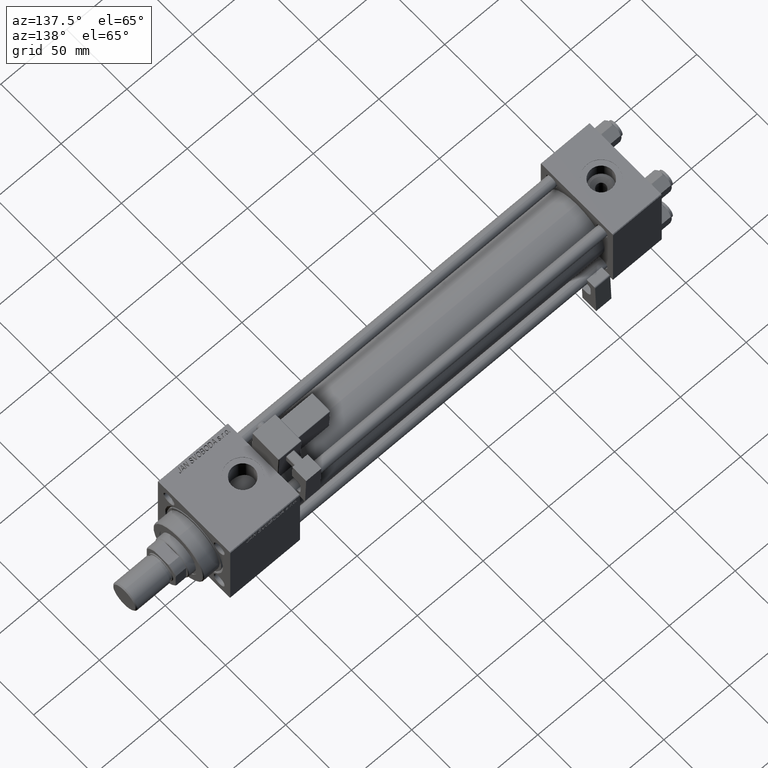
[diagram: clean part render]
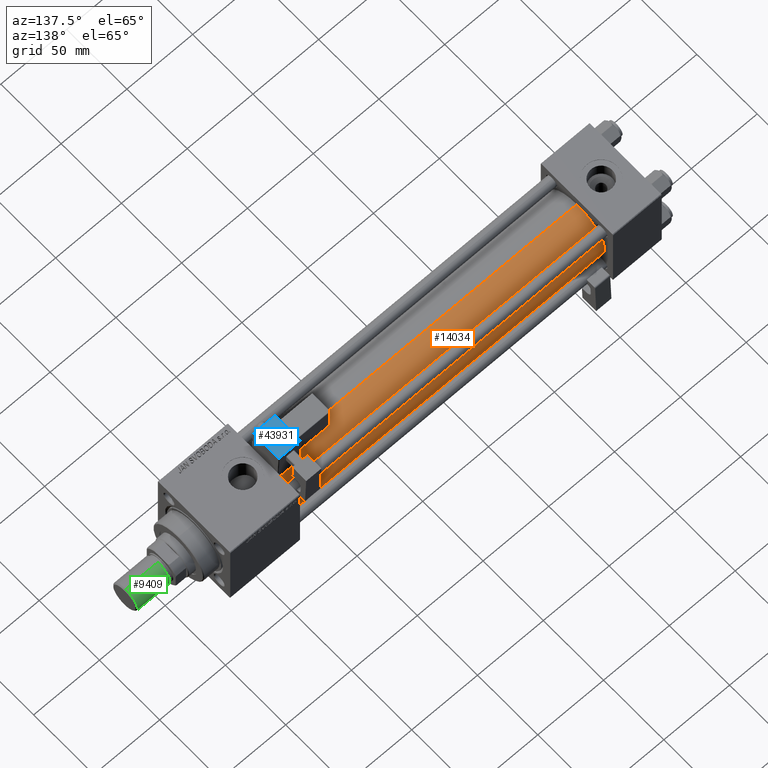
[diagram: same view with three faces highlighted in distinct colors, each labeled with its STEP entity id]
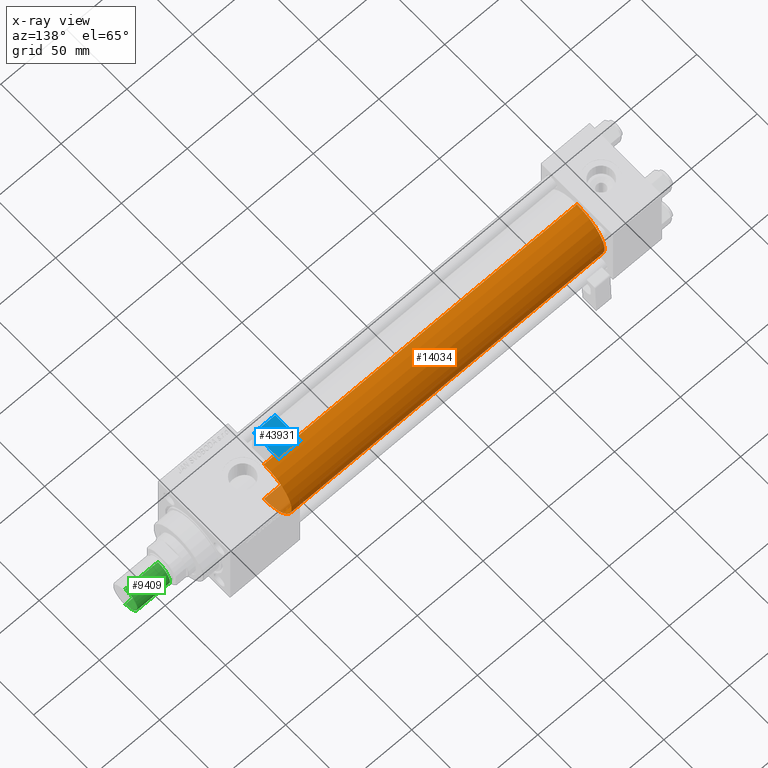
[diagram: x-ray of the same camera — body ghosted, the three highlighted faces saturated]
A machine part, auxiliary view with three faces highlighted in distinct colors.
The next image is the same camera in x-ray (body ghosted, the three faces saturated) — at least one of them is partly hidden behind the body in this view.
Their STEP definitions:

[orange] entity #14034 — the highlighted cylindrical surface (partial cylindrical patch) has radius 23 mm, axis along (-1, -0, -0).
#1078 = AXIS2_PLACEMENT_3D ( 'NONE', #30107, #38689, #30648 ) ;
#3089 = ORIENTED_EDGE ( 'NONE', *, *, #49831, .F. ) ;
#5354 = FACE_OUTER_BOUND ( 'NONE', #6206, .T. ) ;
#5767 = CIRCLE ( 'NONE', #15514, 23.00000000000000000 ) ;
#5958 = AXIS2_PLACEMENT_3D ( 'NONE', #33011, #11330, #23560 ) ;
#6127 = VECTOR ( 'NONE', #27192, 1000.000000000000000 ) ;
#6206 = EDGE_LOOP ( 'NONE', ( #35298, #8147, #42216, #3089 ) ) ;
#8147 = ORIENTED_EDGE ( 'NONE', *, *, #27234, .T. ) ;
#9527 = CYLINDRICAL_SURFACE ( 'NONE', #1078, 23.00000000000000000 ) ;
#10807 = CARTESIAN_POINT ( 'NONE',  ( 274.9999999999999432, 2.146024240737016609E-16, -23.00000000000000000 ) ) ;
#11330 = DIRECTION ( 'NONE',  ( 1.000000000000000000, 0.000000000000000000, 0.000000000000000000 ) ) ;
#14034 = ADVANCED_FACE ( 'NONE', ( #5354 ), #9527, .T. ) ;
#14163 = CARTESIAN_POINT ( 'NONE',  ( 37.00000000000000711, -2.602085213965210642E-15, 0.000000000000000000 ) ) ;
#14936 = LINE ( 'NONE', #18829, #6127 ) ;
#15514 = AXIS2_PLACEMENT_3D ( 'NONE', #14163, #47762, #39161 ) ;
#18829 = CARTESIAN_POINT ( 'NONE',  ( 274.9999999999999432, -2.602085213965210642E-15, 23.00000000000000000 ) ) ;
#20119 = VECTOR ( 'NONE', #23056, 1000.000000000000000 ) ;
#20188 = CARTESIAN_POINT ( 'NONE',  ( 274.9999999999999432, 2.146024240737016609E-16, -23.00000000000000000 ) ) ;
#21252 = EDGE_CURVE ( 'NONE', #26493, #37036, #5767, .T. ) ;
#21611 = VERTEX_POINT ( 'NONE', #20188 ) ;
#23056 = DIRECTION ( 'NONE',  ( -1.000000000000000000, -0.000000000000000000, -0.000000000000000000 ) ) ;
#23560 = DIRECTION ( 'NONE',  ( 0.000000000000000000, 0.000000000000000000, -1.000000000000000000 ) ) ;
#25839 = VERTEX_POINT ( 'NONE', #45006 ) ;
#26092 = EDGE_CURVE ( 'NONE', #21611, #25839, #29804, .T. ) ;
#26493 = VERTEX_POINT ( 'NONE', #31792 ) ;
#27192 = DIRECTION ( 'NONE',  ( -1.000000000000000000, -0.000000000000000000, -0.000000000000000000 ) ) ;
#27234 = EDGE_CURVE ( 'NONE', #21611, #26493, #52480, .T. ) ;
#29804 = CIRCLE ( 'NONE', #5958, 23.00000000000000000 ) ;
#30107 = CARTESIAN_POINT ( 'NONE',  ( 274.9999999999999432, -2.602085213965210642E-15, 0.000000000000000000 ) ) ;
#30648 = DIRECTION ( 'NONE',  ( 0.000000000000000000, 0.000000000000000000, 1.000000000000000000 ) ) ;
#31792 = CARTESIAN_POINT ( 'NONE',  ( 37.00000000000000711, 2.146024240737016609E-16, -23.00000000000000000 ) ) ;
#33011 = CARTESIAN_POINT ( 'NONE',  ( 274.9999999999999432, -2.602085213965210642E-15, 0.000000000000000000 ) ) ;
#35298 = ORIENTED_EDGE ( 'NONE', *, *, #26092, .F. ) ;
#37036 = VERTEX_POINT ( 'NONE', #46863 ) ;
#38689 = DIRECTION ( 'NONE',  ( -1.000000000000000000, -0.000000000000000000, -0.000000000000000000 ) ) ;
#39161 = DIRECTION ( 'NONE',  ( 0.000000000000000000, 0.000000000000000000, 1.000000000000000000 ) ) ;
#42216 = ORIENTED_EDGE ( 'NONE', *, *, #21252, .T. ) ;
#45006 = CARTESIAN_POINT ( 'NONE',  ( 274.9999999999999432, -2.602085213965210642E-15, 23.00000000000000000 ) ) ;
#46863 = CARTESIAN_POINT ( 'NONE',  ( 37.00000000000000711, -2.602085213965210642E-15, 23.00000000000000000 ) ) ;
#47762 = DIRECTION ( 'NONE',  ( 1.000000000000000000, -0.000000000000000000, 0.000000000000000000 ) ) ;
#49831 = EDGE_CURVE ( 'NONE', #25839, #37036, #14936, .T. ) ;
#52480 = LINE ( 'NONE', #10807, #20119 ) ;

[blue] entity #43931 — the highlighted planar face has unit normal (0, -0.0353, -0.9994).
#531 = ORIENTED_EDGE ( 'NONE', *, *, #44235, .T. ) ;
#627 = DIRECTION ( 'NONE',  ( 1.000000000000000000, -0.000000000000000000, 0.000000000000000000 ) ) ;
#5613 = CARTESIAN_POINT ( 'NONE',  ( 8.250000000000003553, -35.75000000000000000, -1.000000000000000222 ) ) ;
#6712 = PLANE ( 'NONE',  #14800 ) ;
#6760 = VERTEX_POINT ( 'NONE', #46752 ) ;
#6865 = CARTESIAN_POINT ( 'NONE',  ( 8.750000000000003553, -35.25000000000000000, -1.000000000000000222 ) ) ;
#8316 = CARTESIAN_POINT ( 'NONE',  ( 8.250000000000003553, -14.24999999999999822, -1.000000000000000222 ) ) ;
#8435 = LINE ( 'NONE', #29827, #22938 ) ;
#11018 = LINE ( 'NONE', #6865, #19759 ) ;
#11566 = CARTESIAN_POINT ( 'NONE',  ( -8.250000000000003553, -14.24999999999999822, -1.000000000000000222 ) ) ;
#12798 = LINE ( 'NONE', #25865, #52034 ) ;
#14579 = VERTEX_POINT ( 'NONE', #8316 ) ;
#14771 = FACE_OUTER_BOUND ( 'NONE', #34715, .T. ) ;
#14800 = AXIS2_PLACEMENT_3D ( 'NONE', #23674, #31742, #43942 ) ;
#15866 = EDGE_CURVE ( 'NONE', #21946, #6760, #11018, .T. ) ;
#16222 = ORIENTED_EDGE ( 'NONE', *, *, #51828, .T. ) ;
#18388 = DIRECTION ( 'NONE',  ( -0.000000000000000000, -1.000000000000000000, -0.000000000000000000 ) ) ;
#19759 = VECTOR ( 'NONE', #40747, 1000.000000000000000 ) ;
#21946 = VERTEX_POINT ( 'NONE', #41219 ) ;
#22938 = VECTOR ( 'NONE', #627, 1000.000000000000000 ) ;
#23674 = CARTESIAN_POINT ( 'NONE',  ( 8.750000000000003553, -35.75000000000000000, -1.000000000000000222 ) ) ;
#25865 = CARTESIAN_POINT ( 'NONE',  ( -8.250000000000003553, -35.75000000000000000, -1.000000000000000222 ) ) ;
#26844 = EDGE_CURVE ( 'NONE', #14579, #21946, #43664, .T. ) ;
#27995 = ORIENTED_EDGE ( 'NONE', *, *, #26844, .T. ) ;
#29827 = CARTESIAN_POINT ( 'NONE',  ( 8.750000000000003553, -14.24999999999999822, -1.000000000000000222 ) ) ;
#29847 = VECTOR ( 'NONE', #18388, 1000.000000000000000 ) ;
#30869 = DIRECTION ( 'NONE',  ( -0.000000000000000000, 1.000000000000000000, 0.000000000000000000 ) ) ;
#31742 = DIRECTION ( 'NONE',  ( 0.000000000000000000, 0.000000000000000000, 1.000000000000000000 ) ) ;
#34715 = EDGE_LOOP ( 'NONE', ( #16222, #27995, #52630, #531 ) ) ;
#40747 = DIRECTION ( 'NONE',  ( -1.000000000000000000, -0.000000000000000000, 0.000000000000000000 ) ) ;
#41219 = CARTESIAN_POINT ( 'NONE',  ( 8.250000000000003553, -35.25000000000000000, -1.000000000000000222 ) ) ;
#43664 = LINE ( 'NONE', #5613, #29847 ) ;
#43931 = ADVANCED_FACE ( 'NONE', ( #14771 ), #6712, .F. ) ;
#43942 = DIRECTION ( 'NONE',  ( 1.000000000000000000, 0.000000000000000000, -0.000000000000000000 ) ) ;
#44235 = EDGE_CURVE ( 'NONE', #6760, #47228, #12798, .T. ) ;
#46752 = CARTESIAN_POINT ( 'NONE',  ( -8.250000000000003553, -35.25000000000000000, -1.000000000000000222 ) ) ;
#47228 = VERTEX_POINT ( 'NONE', #11566 ) ;
#51828 = EDGE_CURVE ( 'NONE', #47228, #14579, #8435, .T. ) ;
#52034 = VECTOR ( 'NONE', #30869, 1000.000000000000000 ) ;
#52630 = ORIENTED_EDGE ( 'NONE', *, *, #15866, .T. ) ;

[green] entity #9409 — the highlighted cylindrical surface (edge-blend (fillet) strip) has radius 10 mm, axis along (1, -0, -0).
#1399 = CIRCLE ( 'NONE', #4965, 10.00000000000000000 ) ;
#2671 = DIRECTION ( 'NONE',  ( 0.000000000000000000, 0.000000000000000000, 1.000000000000000000 ) ) ;
#4302 = CARTESIAN_POINT ( 'NONE',  ( -10.00000000000000000, 0.000000000000000000, 25.50000000000000000 ) ) ;
#4355 = LINE ( 'NONE', #16845, #13922 ) ;
#4965 = AXIS2_PLACEMENT_3D ( 'NONE', #17323, #22075, #26516 ) ;
#9409 = ADVANCED_FACE ( 'NONE', ( #10430 ), #32389, .T. ) ;
#10080 = AXIS2_PLACEMENT_3D ( 'NONE', #40718, #2671, #36563 ) ;
#10430 = FACE_OUTER_BOUND ( 'NONE', #11891, .T. ) ;
#10458 = VERTEX_POINT ( 'NONE', #40978 ) ;
#11891 = EDGE_LOOP ( 'NONE', ( #43907, #38201, #14874, #51070 ) ) ;
#13922 = VECTOR ( 'NONE', #33810, 1000.000000000000000 ) ;
#14874 = ORIENTED_EDGE ( 'NONE', *, *, #25739, .T. ) ;
#15590 = CARTESIAN_POINT ( 'NONE',  ( 10.00000000000000000, 1.224646799147353256E-15, 25.50000000000000000 ) ) ;
#16845 = CARTESIAN_POINT ( 'NONE',  ( -10.00000000000000000, 0.000000000000000000, 25.50000000000000000 ) ) ;
#17323 = CARTESIAN_POINT ( 'NONE',  ( 0.000000000000000000, 0.000000000000000000, 0.8000000000000055955 ) ) ;
#18225 = EDGE_CURVE ( 'NONE', #10458, #25570, #50863, .T. ) ;
#19434 = CARTESIAN_POINT ( 'NONE',  ( 10.00000000000000000, 1.224646799147353256E-15, 0.8000000000000055955 ) ) ;
#22075 = DIRECTION ( 'NONE',  ( -0.000000000000000000, -0.000000000000000000, 1.000000000000000000 ) ) ;
#25570 = VERTEX_POINT ( 'NONE', #4302 ) ;
#25739 = EDGE_CURVE ( 'NONE', #53120, #47996, #1399, .T. ) ;
#26516 = DIRECTION ( 'NONE',  ( 1.000000000000000000, 0.000000000000000000, 0.000000000000000000 ) ) ;
#28660 = LINE ( 'NONE', #15590, #34084 ) ;
#32112 = CARTESIAN_POINT ( 'NONE',  ( 0.000000000000000000, 0.000000000000000000, 25.50000000000000000 ) ) ;
#32389 = CYLINDRICAL_SURFACE ( 'NONE', #48930, 10.00000000000000000 ) ;
#32563 = DIRECTION ( 'NONE',  ( -0.000000000000000000, -0.000000000000000000, -1.000000000000000000 ) ) ;
#33810 = DIRECTION ( 'NONE',  ( -0.000000000000000000, -0.000000000000000000, -1.000000000000000000 ) ) ;
#34084 = VECTOR ( 'NONE', #32563, 1000.000000000000000 ) ;
#35982 = DIRECTION ( 'NONE',  ( -1.000000000000000000, 0.000000000000000000, 0.000000000000000000 ) ) ;
#36563 = DIRECTION ( 'NONE',  ( 1.000000000000000000, 0.000000000000000000, 0.000000000000000000 ) ) ;
#38201 = ORIENTED_EDGE ( 'NONE', *, *, #38699, .T. ) ;
#38699 = EDGE_CURVE ( 'NONE', #10458, #53120, #28660, .T. ) ;
#40718 = CARTESIAN_POINT ( 'NONE',  ( 0.000000000000000000, 0.000000000000000000, 25.50000000000000000 ) ) ;
#40740 = CARTESIAN_POINT ( 'NONE',  ( -10.00000000000000000, 0.000000000000000000, 0.8000000000000055955 ) ) ;
#40978 = CARTESIAN_POINT ( 'NONE',  ( 10.00000000000000000, 1.224646799147353256E-15, 25.50000000000000000 ) ) ;
#43907 = ORIENTED_EDGE ( 'NONE', *, *, #18225, .F. ) ;
#44309 = DIRECTION ( 'NONE',  ( -0.000000000000000000, -0.000000000000000000, -1.000000000000000000 ) ) ;
#45001 = EDGE_CURVE ( 'NONE', #25570, #47996, #4355, .T. ) ;
#47996 = VERTEX_POINT ( 'NONE', #40740 ) ;
#48930 = AXIS2_PLACEMENT_3D ( 'NONE', #32112, #44309, #35982 ) ;
#50863 = CIRCLE ( 'NONE', #10080, 10.00000000000000000 ) ;
#51070 = ORIENTED_EDGE ( 'NONE', *, *, #45001, .F. ) ;
#53120 = VERTEX_POINT ( 'NONE', #19434 ) ;